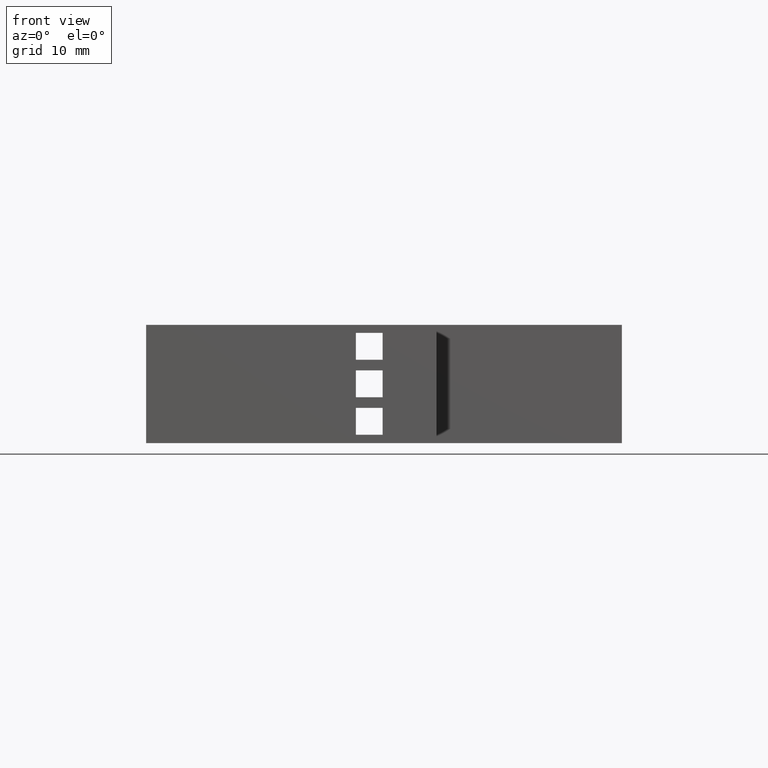
[diagram: clean part render]
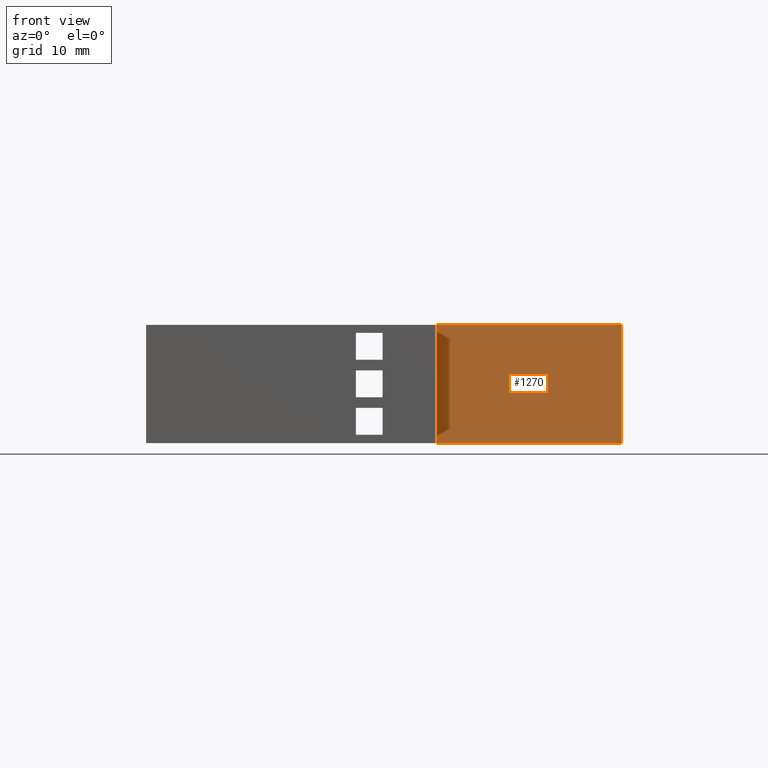
[diagram: same view with one face highlighted and labeled with its STEP entity id]
A machine part, front view. The second image highlights one B-rep face of the part: STEP entity #1270.
In plain terms, the highlighted planar face has unit normal (0, -1, 0).
Its self-contained STEP definition (entity closure, byte-faithful):
#82=DIRECTION('',(1.E0,0.E0,0.E0));
#83=VECTOR('',#82,1.0781E0);
#84=CARTESIAN_POINT('',(6.969565682097E-1,-2.421095613395E0,6.875E-1));
#85=LINE('',#84,#83);
#220=DIRECTION('',(1.E0,0.E0,0.E0));
#221=VECTOR('',#220,1.0781E0);
#222=CARTESIAN_POINT('',(6.969565682097E-1,-2.421095613395E0,0.E0));
#223=LINE('',#222,#221);
#224=DIRECTION('',(0.E0,0.E0,-1.E0));
#225=VECTOR('',#224,6.875E-1);
#226=CARTESIAN_POINT('',(6.969565682097E-1,-2.421095613395E0,6.875E-1));
#227=LINE('',#226,#225);
#232=DIRECTION('',(0.E0,0.E0,-1.E0));
#233=VECTOR('',#232,6.875E-1);
#234=CARTESIAN_POINT('',(1.775056568210E0,-2.421095613395E0,6.875E-1));
#235=LINE('',#234,#233);
#878=CARTESIAN_POINT('',(1.775056568210E0,-2.421095613395E0,6.875E-1));
#879=VERTEX_POINT('',#878);
#880=CARTESIAN_POINT('',(1.775056568210E0,-2.421095613395E0,0.E0));
#881=VERTEX_POINT('',#880);
#882=CARTESIAN_POINT('',(6.969565682097E-1,-2.421095613395E0,6.875E-1));
#883=VERTEX_POINT('',#882);
#884=CARTESIAN_POINT('',(6.969565682097E-1,-2.421095613395E0,0.E0));
#885=VERTEX_POINT('',#884);
#1258=CARTESIAN_POINT('',(1.775056568210E0,-2.421095613395E0,0.E0));
#1259=DIRECTION('',(0.E0,-1.E0,0.E0));
#1260=DIRECTION('',(0.E0,0.E0,-1.E0));
#1261=AXIS2_PLACEMENT_3D('',#1258,#1259,#1260);
#1262=PLANE('',#1261);
#1263=ORIENTED_EDGE('',*,*,#1011,.T.);
#1265=ORIENTED_EDGE('',*,*,#1264,.T.);
#1266=ORIENTED_EDGE('',*,*,#1067,.F.);
#1267=ORIENTED_EDGE('',*,*,#1233,.F.);
#1268=EDGE_LOOP('',(#1263,#1265,#1266,#1267));
#1269=FACE_OUTER_BOUND('',#1268,.F.);
#1270=ADVANCED_FACE('',(#1269),#1262,.T.);
#1011=EDGE_CURVE('',#883,#879,#85,.T.);
#1067=EDGE_CURVE('',#885,#881,#223,.T.);
#1233=EDGE_CURVE('',#883,#885,#227,.T.);
#1264=EDGE_CURVE('',#879,#881,#235,.T.);